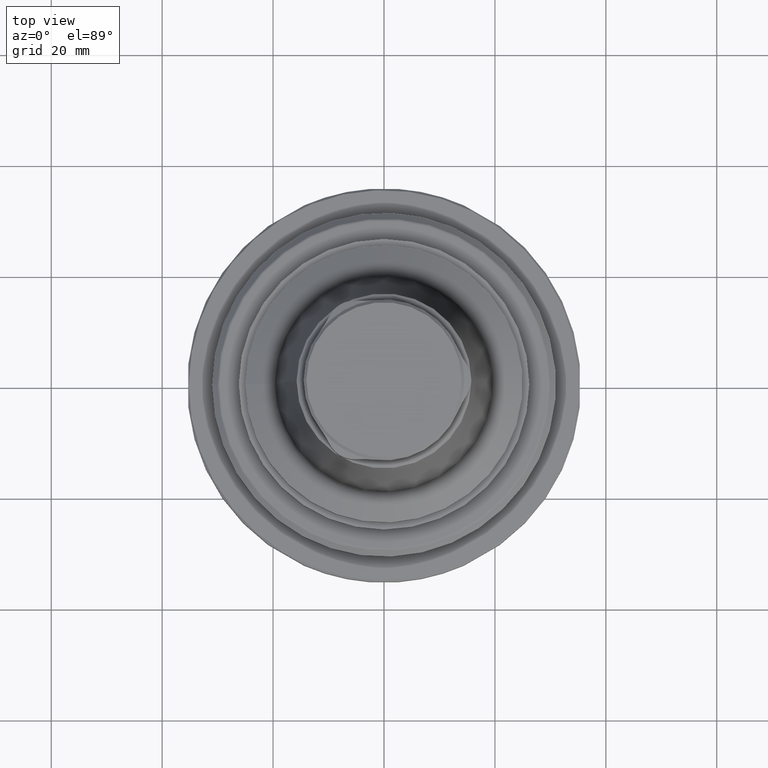
[diagram: clean part render]
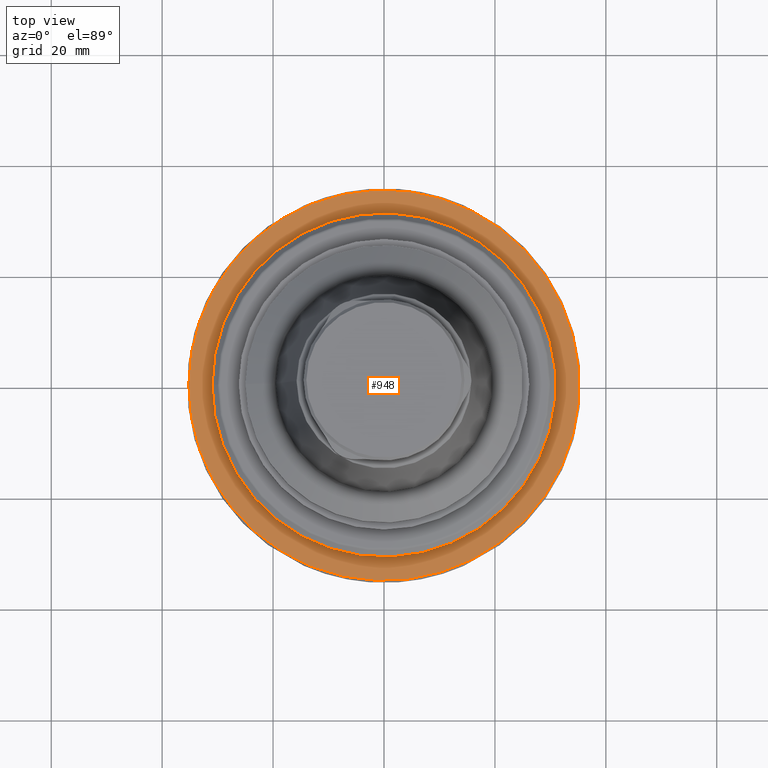
[diagram: same view with one face highlighted and labeled with its STEP entity id]
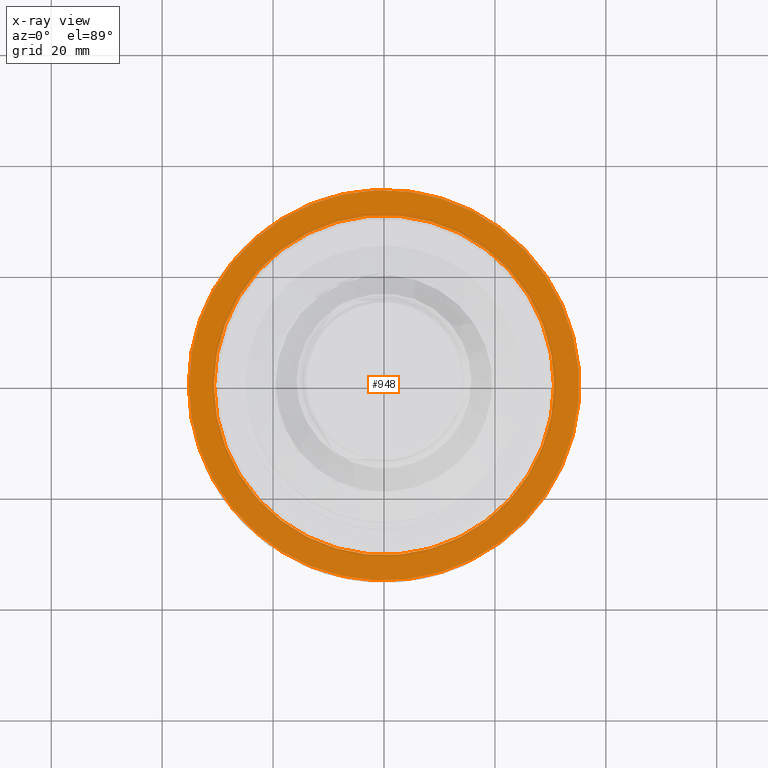
[diagram: x-ray of the same camera — body ghosted, the highlighted face saturated]
A machine part, top view. The second image highlights one B-rep face of the part: STEP entity #948.
The next image is the same camera in x-ray: the body ghosted, the highlighted face saturated — about 0% of this face is hidden behind the body in this view.
In plain terms, the highlighted planar face has unit normal (-0, -0, -1).
Its self-contained STEP definition (entity closure, byte-faithful):
#390=ORIENTED_EDGE('',*,*,#531,.T.);
#391=ORIENTED_EDGE('',*,*,#486,.F.);
#486=EDGE_CURVE('',#593,#593,#662,.T.);
#531=EDGE_CURVE('',#622,#622,#677,.T.);
#593=VERTEX_POINT('',#1649);
#622=VERTEX_POINT('',#1788);
#662=CIRCLE('',#1040,35.2);
#677=CIRCLE('',#1072,30.65);
#757=EDGE_LOOP('',(#390));
#758=EDGE_LOOP('',(#391));
#853=FACE_BOUND('',#757,.T.);
#854=FACE_BOUND('',#758,.T.);
#892=PLANE('',#1071);
#948=ADVANCED_FACE('',(#853,#854),#892,.F.);
#1040=AXIS2_PLACEMENT_3D('',#1648,#1241,#1242);
#1071=AXIS2_PLACEMENT_3D('',#1786,#1317,#1318);
#1072=AXIS2_PLACEMENT_3D('',#1787,#1319,#1320);
#1241=DIRECTION('',(-5.47430718319515E-16,-9.52839907700963E-18,-1.));
#1242=DIRECTION('',(-1.,8.32667268468868E-16,5.47430716006892E-16));
#1317=DIRECTION('',(-5.47430718319515E-16,-9.52839907700963E-18,-1.));
#1318=DIRECTION('',(-1.,8.32667268468868E-16,5.47430716006892E-16));
#1319=DIRECTION('',(-5.47430718319515E-16,-9.52839907700963E-18,-1.));
#1320=DIRECTION('',(-1.,8.32667268468868E-16,5.47430716006892E-16));
#1648=CARTESIAN_POINT('',(-8.82017194387899E-14,-9.81645351751964E-14,-0.999999999999996));
#1649=CARTESIAN_POINT('',(-35.2000000000001,-6.88546473250923E-14,-0.999999999999977));
#1786=CARTESIAN_POINT('',(-30.6500000000001,-7.26432833966256E-14,-0.999999999999979));
#1787=CARTESIAN_POINT('',(-8.82017194387899E-14,-9.81645351751964E-14,-0.999999999999996));
#1788=CARTESIAN_POINT('',(-30.6500000000001,-7.26432833966256E-14,-0.999999999999979));